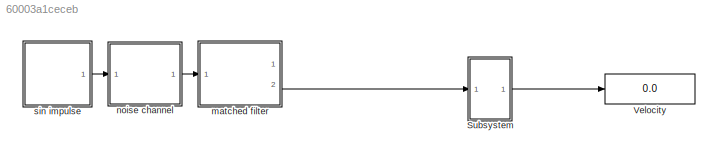
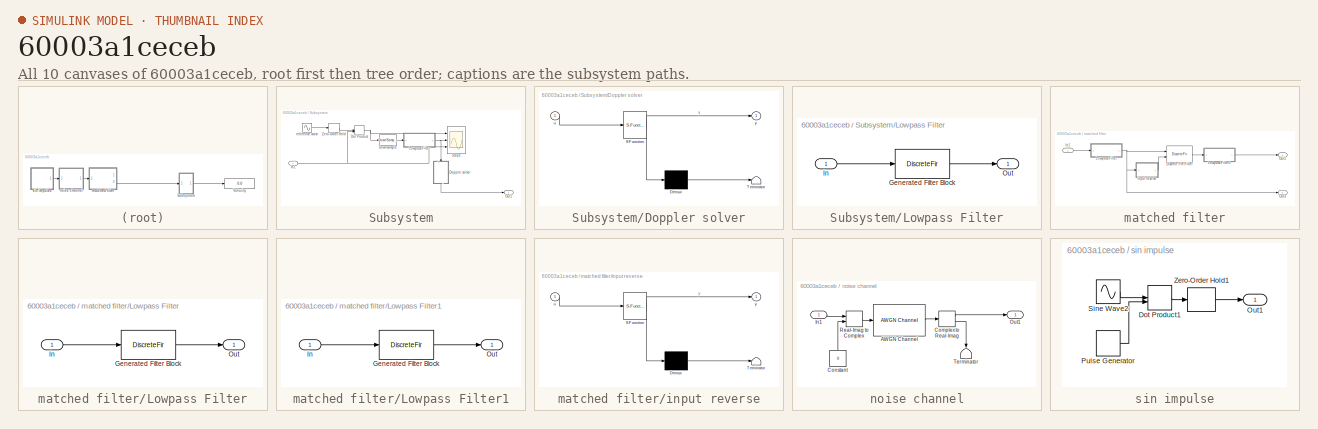
[diagram: thumbnail index - all 10 canvases of the model, root first then tree order]
MODEL slx_60003a1ceceb
KIND model
CONFIG AbsTol = auto
CONFIG EnableMultiTasking = on
CONFIG FixedStep = 10^(-10)
CONFIG MaxStep = auto
CONFIG MinStep = auto
CONFIG RelTol = 1e-3
CONFIG SampleTimeConstraint = Unconstrained
CONFIG Solver = FixedStepAuto
CONFIG SolverName = FixedStepAuto
CONFIG StartTime = 0.0
CONFIG StopTime = 10^(-2)
BLOCK [SubSystem] Subsystem
  Ports = [1, 1]
  RequestExecContextInheritance = off
  Variant = off
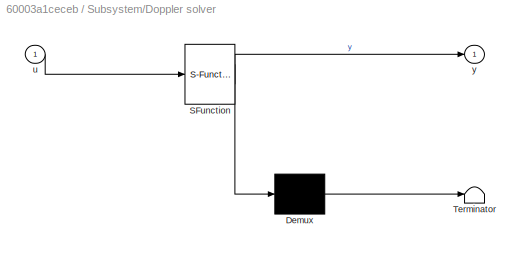
BLOCK [SubSystem] Subsystem/Doppler solver
  ErrorFcn = Stateflow.Translate.translate
  PermitHierarchicalResolution = ExplicitOnly
  Ports = [1, 1]
  RequestExecContextInheritance = off
  SFBlockType = MATLAB Function
  TreatAsAtomicUnit = on
  Variant = off
BLOCK [Demux] Subsystem/Doppler solver/ Demux 
  Outputs = 1
  Ports = [1, 1]
BLOCK [S-Function] Subsystem/Doppler solver/ SFunction 
  EnableBusSupport = on
  FunctionName = sf_sfun
  PortCounts = [1 2]
  Ports = [1, 2]
  SFcnIsStateOwnerBlock = off
  SFunctionDeploymentMode = off
  Tag = Stateflow S-Function TP_doppler_filter 1
BLOCK [Terminator] Subsystem/Doppler solver/ Terminator 
BLOCK [Inport] Subsystem/Doppler solver/u
  IconDisplay = Port number
BLOCK [Outport] Subsystem/Doppler solver/y
  IconDisplay = Port number
BLOCK [DotProduct] Subsystem/Dot Product
  OutDataTypeStr = Inherit: Inherit via internal rule
BLOCK [DownSample] Subsystem/Downsample
  InputProcessing = Elements as channels (sample based)
  N = 300000
  phase = 104
BLOCK [Inport] Subsystem/In1
  IconDisplay = Port number
BLOCK [SubSystem] Subsystem/Lowpass Filter
  CopyFcn = fdesignblkfcn(gcbh, {'CopyFcn'});
  DialogController = fdesignblkfcn
  InitFcn = fdesignblkfcn(gcbh, {'InitFcn'});
  Ports = [1, 1]
  RequestExecContextInheritance = off
  UserDataPersistent = on
  Variant = off
BLOCK [DiscreteFir] Subsystem/Lowpass Filter/Generated Filter Block
  Coefficients = [0.00444194733209979115 0.0054220324433853391 -0.0118651041659676611 -0.0311692725865293438 -0.00867203647139627026 0.0390340643789495317 0.0194541464420488128 -0.0723156718204192722 -0.0634598005717867258 0.164988409771359118 0.428191589429428698 0.428191589429428698 0.164988409771359118 -0.0634598005717867258 -0.0723156718204192722 0.0194541464420488128 0.0390340643789495317 -0.00867203647139627...<+95ch>
  InputPortMap = u0
  InputProcessing = Columns as channels (frame based)
  OutputPortMap = o0
  Ports = [1, 1]
  Tag = BlockMethodSubSystem
BLOCK [Inport] Subsystem/Lowpass Filter/In
  IconDisplay = Port number
BLOCK [Outport] Subsystem/Lowpass Filter/Out
  IconDisplay = Port number
BLOCK [Outport] Subsystem/Out1
  IconDisplay = Port number
BLOCK [Scope] Subsystem/Scope
  NumInputPorts = 3
  Ports = [3]
  ScopeSpecificationString = Simulink.scopes.TimeScopeBlockCfg('CurrentConfiguration', extmgr.ConfigurationSet(extmgr.Configuration('Core','General UI',true,'DisplayFullSourceName',true),extmgr.Configuration('Core','Source UI',true),extmgr.Configuration('Sources','WiredSimulink',true,'DataLoggingSaveFormat','Array','DataLoggingDecimation','1','DataLoggingDecimateData',true),extmgr.Configuration('Visuals','Time Domain',true,'S...<+2963ch>
BLOCK [ZeroOrderHold] Subsystem/Zero-Order Hold
  SampleTime = 10^(-10)
BLOCK [Sin] Subsystem/reference wave
  Frequency = 1000000000*2*pi
  Ports = [0, 1]
  SampleTime = 0
BLOCK [Display] Velocity
  Decimation = 1
  Ports = [1]
BLOCK [SubSystem] matched filter
  Ports = [1, 2]
  RequestExecContextInheritance = off
  Variant = off
BLOCK [DiscreteFir] matched filter/Discrete FIR Filter
  CoefSource = Input port
  Coefficients = [1 1 1 1 1 1]
  InputPortMap = u0,u1
  InputProcessing = Columns as channels (frame based)
  OutputPortMap = o0
  Ports = [2, 1]
BLOCK [Inport] matched filter/In1
  IconDisplay = Port number
BLOCK [SubSystem] matched filter/Lowpass Filter
  CopyFcn = fdesignblkfcn(gcbh, {'CopyFcn'});
  DialogController = fdesignblkfcn
  InitFcn = fdesignblkfcn(gcbh, {'InitFcn'});
  Ports = [1, 1]
  RequestExecContextInheritance = off
  UserDataPersistent = on
  Variant = off
BLOCK [DiscreteFir] matched filter/Lowpass Filter/Generated Filter Block
  Coefficients = [-0.00882242952209379323 -0.00250396131135136295 0.0203488178406029327 0.00845153638179320724 -0.00156508516764006927 0.0105860024294243335 -0.00352454868452364151 0.00077576045905514146 0.00717622040828255932 -0.00940111963814425564 0.00797382618152611515 -0.000273978864866431318 -0.00850196312346529828 0.0141906978084733945 -0.0119506479715848612 0.00181855656901186435 0.0118184144727089858 -0.0...<+977ch>
  InputPortMap = u0
  InputProcessing = Columns as channels (frame based)
  OutputPortMap = o0
  Ports = [1, 1]
  Tag = BlockMethodSubSystem
BLOCK [Inport] matched filter/Lowpass Filter/In
  IconDisplay = Port number
BLOCK [Outport] matched filter/Lowpass Filter/Out
  IconDisplay = Port number
BLOCK [SubSystem] matched filter/Lowpass Filter1
  CopyFcn = fdesignblkfcn(gcbh, {'CopyFcn'});
  DialogController = fdesignblkfcn
  InitFcn = fdesignblkfcn(gcbh, {'InitFcn'});
  Ports = [1, 1]
  RequestExecContextInheritance = off
  UserDataPersistent = on
  Variant = off
BLOCK [DiscreteFir] matched filter/Lowpass Filter1/Generated Filter Block
  Coefficients = [-0.00882242952209379323 -0.00250396131135136295 0.0203488178406029327 0.00845153638179320724 -0.00156508516764006927 0.0105860024294243335 -0.00352454868452364151 0.00077576045905514146 0.00717622040828255932 -0.00940111963814425564 0.00797382618152611515 -0.000273978864866431318 -0.00850196312346529828 0.0141906978084733945 -0.0119506479715848612 0.00181855656901186435 0.0118184144727089858 -0.0...<+977ch>
  InputPortMap = u0
  InputProcessing = Columns as channels (frame based)
  OutputPortMap = o0
  Ports = [1, 1]
  Tag = BlockMethodSubSystem
BLOCK [Inport] matched filter/Lowpass Filter1/In
  IconDisplay = Port number
BLOCK [Outport] matched filter/Lowpass Filter1/Out
  IconDisplay = Port number
BLOCK [Outport] matched filter/Out1
  IconDisplay = Port number
BLOCK [Outport] matched filter/Out3
  IconDisplay = Port number
  Port = 2
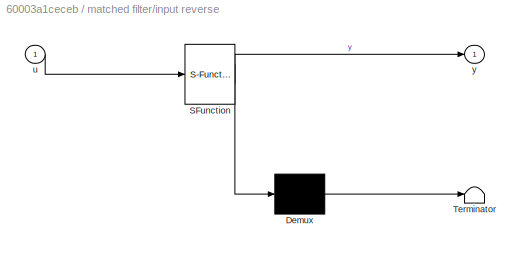
BLOCK [SubSystem] matched filter/input reverse
  ErrorFcn = Stateflow.Translate.translate
  PermitHierarchicalResolution = ExplicitOnly
  Ports = [1, 1]
  RequestExecContextInheritance = off
  SFBlockType = MATLAB Function
  TreatAsAtomicUnit = on
  Variant = off
BLOCK [Demux] matched filter/input reverse/ Demux 
  Outputs = 1
  Ports = [1, 1]
BLOCK [S-Function] matched filter/input reverse/ SFunction 
  EnableBusSupport = on
  FunctionName = sf_sfun
  PortCounts = [1 2]
  Ports = [1, 2]
  SFcnIsStateOwnerBlock = off
  SFunctionDeploymentMode = off
  Tag = Stateflow S-Function TP_doppler_filter 2
BLOCK [Terminator] matched filter/input reverse/ Terminator 
BLOCK [Inport] matched filter/input reverse/u
  IconDisplay = Port number
BLOCK [Outport] matched filter/input reverse/y
  IconDisplay = Port number
BLOCK [SubSystem] noise channel
  Ports = [1, 1]
  RequestExecContextInheritance = off
  Variant = off
BLOCK [Reference] noise channel/AWGN Channel  REF=commchan3/AWGN
Channel
  Ports = [1, 1]
  SourceBlock = commchan3/AWGN\nChannel
  SourceType = AWGN Channel
  UserDataPersistent = on
BLOCK [ComplexToRealImag] noise channel/Complex to Real-Imag
  Ports = [1, 2]
BLOCK [Constant] noise channel/Constant
  Value = 0
BLOCK [Inport] noise channel/In1
  IconDisplay = Port number
BLOCK [Outport] noise channel/Out1
  IconDisplay = Port number
BLOCK [RealImagToComplex] noise channel/Real-Imag to Complex
  Ports = [2, 1]
BLOCK [Terminator] noise channel/Terminator
BLOCK [SubSystem] sin impulse
  Ports = [0, 1]
  RequestExecContextInheritance = off
  Variant = off
BLOCK [DotProduct] sin impulse/Dot Product1
  OutDataTypeStr = Inherit: Inherit via internal rule
BLOCK [Outport] sin impulse/Out1
  IconDisplay = Port number
BLOCK [DiscretePulseGenerator] sin impulse/Pulse Generator
  Period = 3000
  Ports = [0, 1]
  PulseWidth = 100
  SampleTime = 10^(-10)
BLOCK [Sin] sin impulse/Sine Wave2
  Frequency = f
  Phase = 0.3*pi
  Ports = [0, 1]
  SampleTime = 0
BLOCK [ZeroOrderHold] sin impulse/Zero-Order Hold1
  SampleTime = 10^(-10)
LINE Subsystem/Doppler solver:1 -> Subsystem/Out1:1
NET Subsystem/Dot Product:1 -> Subsystem/Downsample:1, Subsystem/Scope:1
LINE Subsystem/Downsample:1 -> Subsystem/Lowpass Filter:1
NET Subsystem/In1:1 -> Subsystem/Dot Product:2, Subsystem/Scope:3
NET Subsystem/Lowpass Filter:1 -> Subsystem/Doppler solver:1, Subsystem/Scope:2
LINE Subsystem/Zero-Order Hold:1 -> Subsystem/Dot Product:1
LINE Subsystem/reference wave:1 -> Subsystem/Zero-Order Hold:1
LINE Subsystem:1 -> Velocity:1
LINE matched filter/Discrete FIR Filter:1 -> matched filter/Lowpass Filter1:1
LINE matched filter/In1:1 -> matched filter/Lowpass Filter:1
LINE matched filter/Lowpass Filter1:1 -> matched filter/Out1:1
NET matched filter/Lowpass Filter:1 -> matched filter/Discrete FIR Filter:1, matched filter/Out3:1, matched filter/input reverse:1
LINE matched filter/input reverse:1 -> matched filter/Discrete FIR Filter:2
LINE matched filter:2 -> Subsystem:1
LINE noise channel/AWGN Channel:1 -> noise channel/Complex to Real-Imag:1
LINE noise channel/Complex to Real-Imag:1 -> noise channel/Out1:1
LINE noise channel/Complex to Real-Imag:2 -> noise channel/Terminator:1
LINE noise channel/Constant:1 -> noise channel/Real-Imag to Complex:2
LINE noise channel/In1:1 -> noise channel/Real-Imag to Complex:1
LINE noise channel/Real-Imag to Complex:1 -> noise channel/AWGN Channel:1
LINE noise channel:1 -> matched filter:1
LINE sin impulse/Dot Product1:1 -> sin impulse/Zero-Order Hold1:1
LINE sin impulse/Pulse Generator:1 -> sin impulse/Dot Product1:2
LINE sin impulse/Sine Wave2:1 -> sin impulse/Dot Product1:1
LINE sin impulse/Zero-Order Hold1:1 -> sin impulse/Out1:1
LINE sin impulse:1 -> noise channel:1
note: NET lines group one-source signal fan-out (src -> all destinations, sorted); 1:1 wires keep LINE
CHART Subsystem/Doppler solver states=1 transitions=1
  STATE_LABEL 'eML_blk_kernel()'
  STATE_LABEL 'SCRIPT:\nfunction y = fcn(u)\n%#codegen\npersistent sum;\npersistent pre;\npersistent v;\n\nif isempty(sum)\n    sum = 0;\nend\n\nif isempty(pre)\n    pre = 0;\nend\n\nif isempty(v)\n    v = 0;\nend\n\nx = u * pre;\npre = u;\n\nif x > 0\n    sum = sum + 1;\nelse\n    vtemp = 3e9/(4*sum);\n    if vtemp < 150\n        v = vtemp;\n    end\n    sum = 0;\nend\n\ny = v;'
CHART matched filter/input reverse states=1 transitions=1
  STATE_LABEL 'eML_blk_kernel()'
  STATE_LABEL 'SCRIPT:\nfunction y = fcn(u)\n%#codegen\n\ny = u(end:-1:1);'
